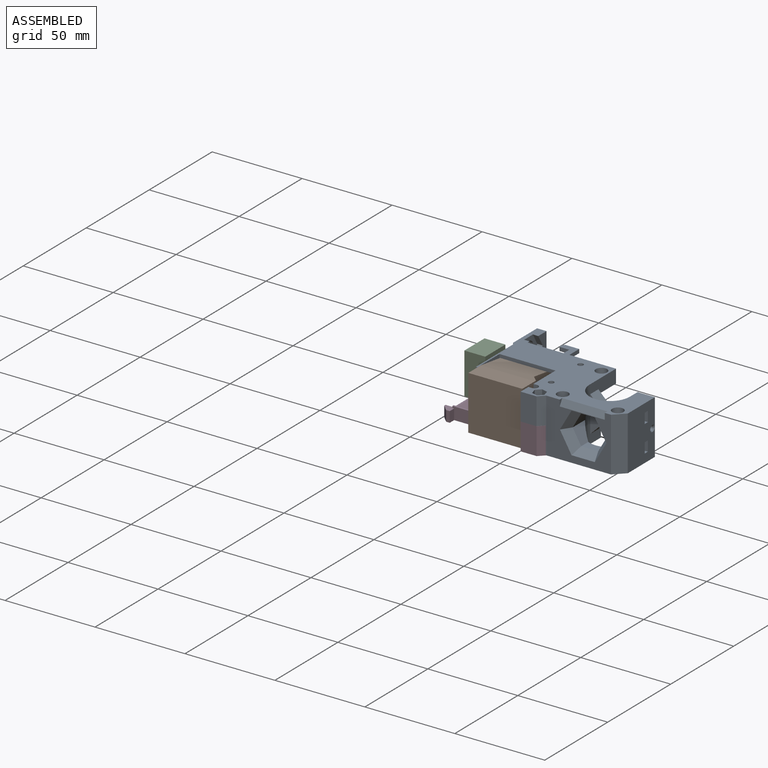
[diagram: assembled view]
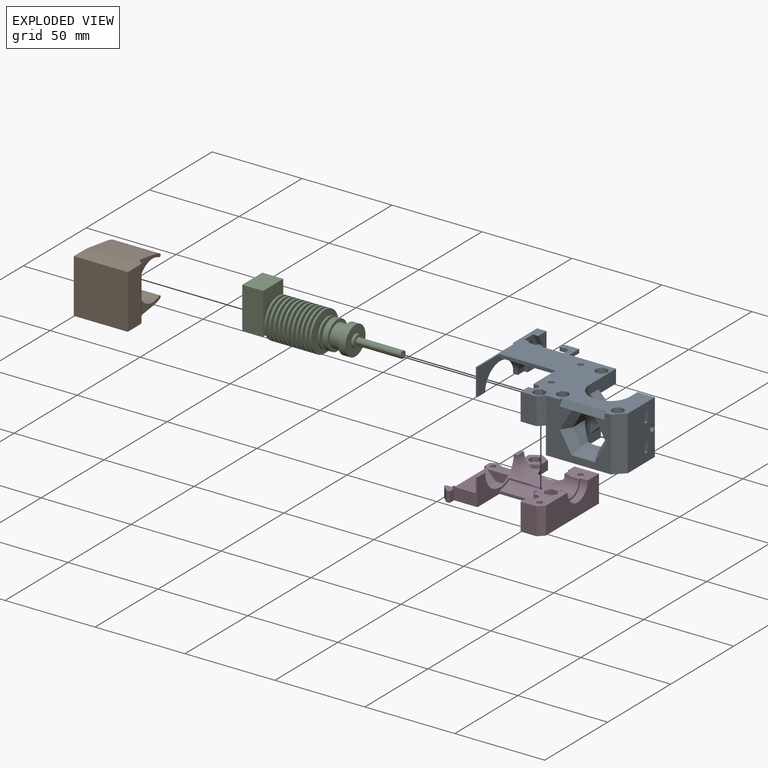
[diagram: exploded view]
GUIDED TOUR — MATED ASSEMBLY (Onshape document 5808ceccea01e9112e0c99a3, AutoMate assembly 5808ceccea01e9112e0c99a3_ede3eb0be8d5a74fef539a08_3d8ae932c43f72d399a84ea4_default)

This assembly has 4 components, labeled P0..P3 below (a component is one placed occurrence of a part; the same part can appear more than once), held together by 3 mates. A mate is a constraint between two components; its type names the relative motion it leaves free:
  FASTENED — locks the two components together rigidly (no relative motion).
Axis/direction vectors are unit vectors and 'through' points are millimeter coordinates, both in the assembly's world frame.

MATES
  1. FASTENED "Fastened 1": P1 <-> P2, direction (1.000, 0.000, 0.000) through (46.97, 20.38, -8.63) mm
  2. FASTENED "Fastened 2": P3 <-> P0, direction (0.000, 0.000, 1.000) through (59.56, -3.54, -8.63) mm
  3. FASTENED "Fastened 3": P2 <-> P0, direction (1.000, 0.000, 0.000) through (63.97, 20.38, -8.63) mm

ASSEMBLY ORDER
  1. P0 — the base component [order heuristic]
  2. P2 — core [order heuristic]
  3. P3 — core [order heuristic]
  4. P1 [order verified]
Order-tag legend:
  [order verified] — this step's position reverses a verified removal order: the component was checked to insert without passing through the ones already placed.
  [order heuristic] — the first 3 components form the assembly's core: parts whose collision-free extraction could not be verified, listed in mate-graph order.

Of the 4 components, 1 carries the full construction recipe — the FeatureScript program that regenerates the part's solid from scratch; the rest are supplied as boundary geometry only.
Each toured component is shown spotlighted twice — in the assembled view, then in the exploded view, where a leader line traces a displaced component back to its assembled socket (saturated green if recipe-attached, orange if geometry-only; every other component desaturated gray) — followed by its recipe or geometry summary and the mates that hold it.
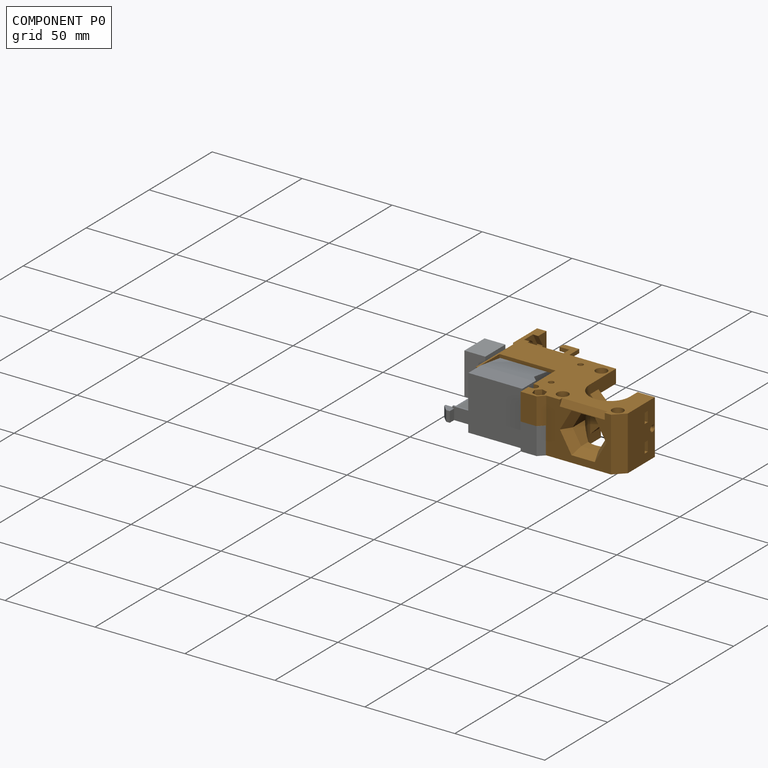
[diagram: component P0 — assembled]
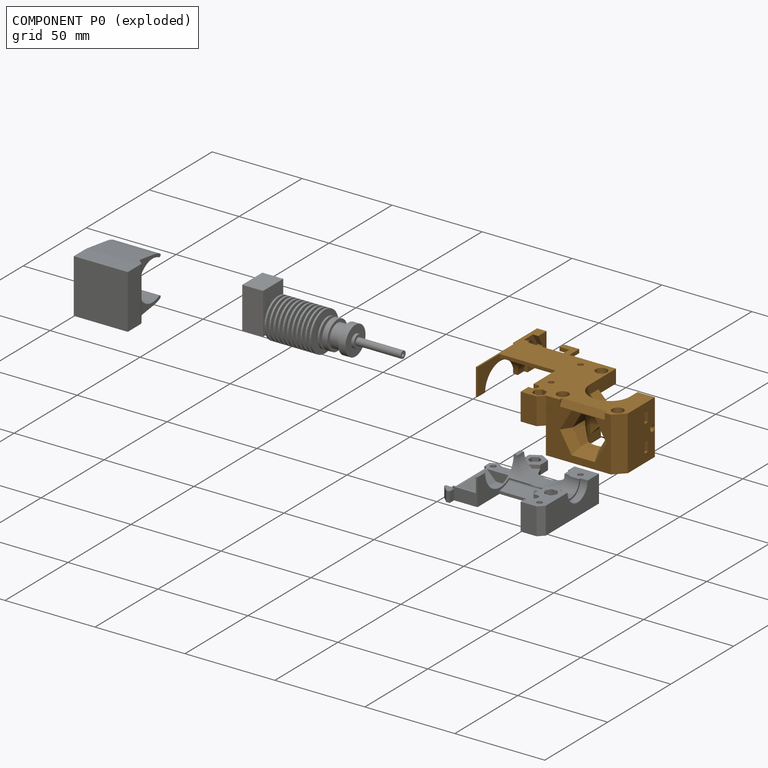
[diagram: component P0 — exploded]
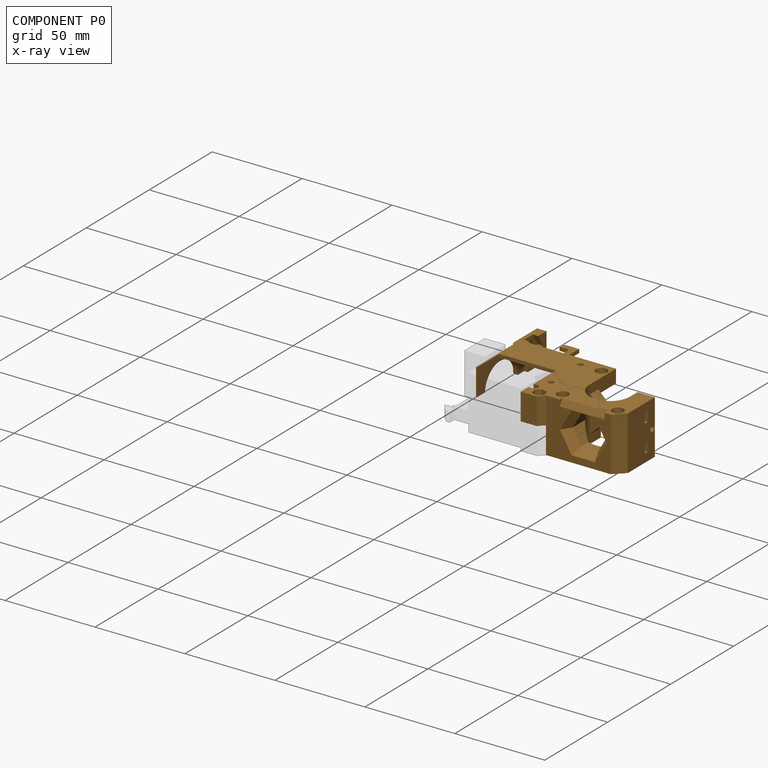
[diagram: component P0 — x-ray view]
COMPONENT P0 — geometry summary (no construction recipe available for this part):
  bounding box: 87.1 x 60.8 x 30.6 mm
  B-rep topology: 1 solid, 166 faces, 898 edges
  volume: 30368 mm^3 (19% of its bounding box)
Held by: FASTENED mate "Fastened 2" to P3; FASTENED mate "Fastened 3" to P2.
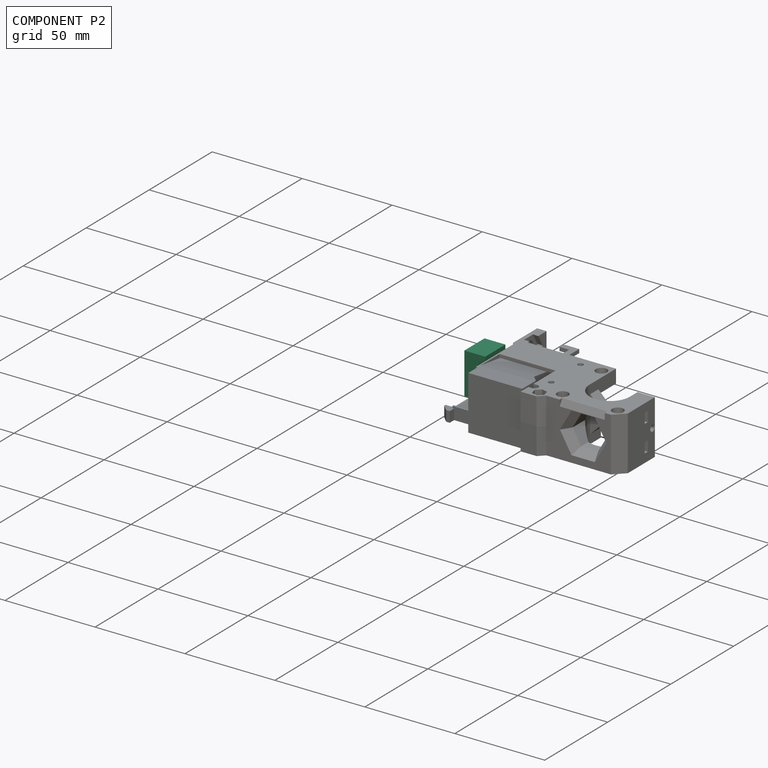
[diagram: component P2 — assembled]
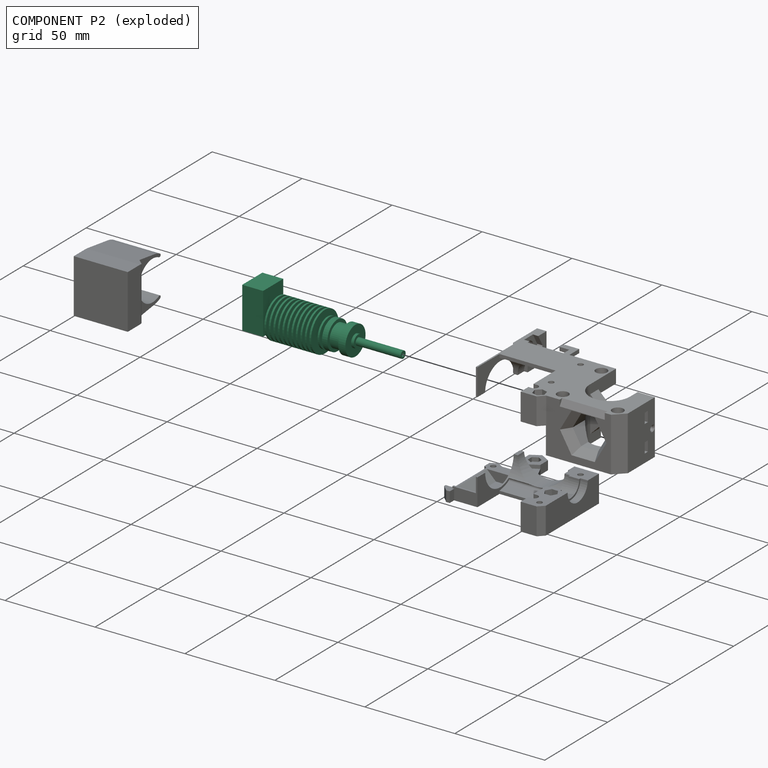
[diagram: component P2 — exploded]
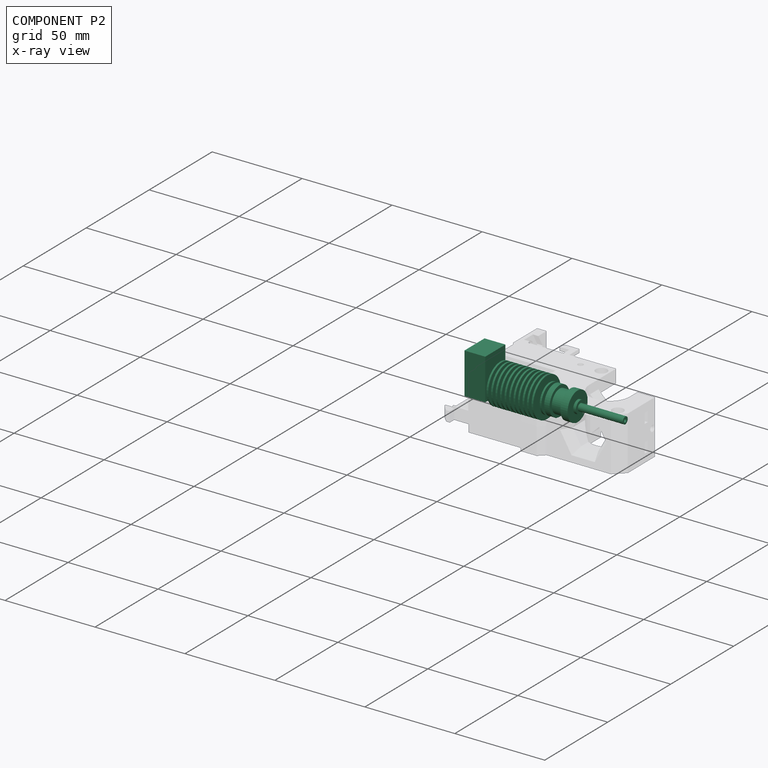
[diagram: component P2 — x-ray view]
COMPONENT P2 — recipe-attached (CADFS 00293074, mesh-verified: the recipe's output STEP matches this component's geometry to below the mesh-comparison resolution (tessellation chordal tolerance ~0.143 mm)).
Held by: FASTENED mate "Fastened 1" to P1; FASTENED mate "Fastened 3" to P0.
Construction recipe (FeatureScript — the CAD program that rebuilds this solid; sketch coordinates are in the units given by the * unit suffixes, e.g. mm):

FeatureScript 1511;
import(path : "onshape/std/geometry.fs", version : "1511.0");
import(path : "onshape/std/common.fs", version : "1511.0");
const mm = millimeter;
const VERTEX = EntityType.VERTEX;
const EDGE = EntityType.EDGE;
const FACE = EntityType.FACE;
const BODY = EntityType.BODY;
function v(x, y){return vector(x, y);}
function OD(order){return orderDisambiguation(order);}
function OSD(set){return originalSetDisambiguation(set);}
function TD(topology){return topologyDisambiguation(topology);}
function TDD(query){return trueDependencyDisambiguation(query);}
function sQuery(a, b, c) {return sketchEntityQuery(a, b, c);}

annotation { "Feature Type Name" : "Feature", "Feature Type Description" : "" }
export const myFeature = defineFeature(function(context is Context, id is Id, definition is map)
    precondition{}
    {
        {
            var Q0;
            Q0=qCreatedBy(makeId("Right.planeOp"),FACE);
            var sketch = newSketch(context, id + "F0", { "sketchPlane" : qUnion([Q0])});
            skLineSegment(sketch, "E0", {"start": v(0, 0) * mm, "end": v(0.5, 0) * mm});
            skLineSegment(sketch, "E1", {"start": v(0, 2) * mm, "end": v(2, 2) * mm});
            skLineSegment(sketch, "E2", {"start": v(0, 2) * mm, "end": v(0, 0) * mm});
            skLineSegment(sketch, "E3", {"start": v(0.5, 0) * mm, "end": v(2, 2) * mm});
            skSolve(sketch);
        }
        {
            var Q0;
            Q0=qSketchRegion(id+"F0",true);
            var Q1;
            Q1=sQuery(id+"F0.wireOp",EDGE,"E2");
            revolve(context, id + "F1", {"entities" : qUnion([Q0]), "axis" : qUnion([Q1]), "revolveType" : RevolveType.FULL});
        }
        {
            var Q0;
            Q0=makeQuery(id+"F1.opRevolve","SWEPT_FACE",FACE,{"disambiguationData":[OSD([sQuery(id+"F0.wireOp",EDGE,"E1")])]});
            var sketch = newSketch(context, id + "F2", { "sketchPlane" : qUnion([Q0])});
            skLineSegment(sketch, "E4", {"start": v(-2.02, 3.5) * mm, "end": v(2.02, 3.5) * mm});
            skLineSegment(sketch, "E5", {"start": v(-2.02, -3.5) * mm, "end": v(2.02, -3.5) * mm});
            skLineSegment(sketch, "E6", {"start": v(-2.02, 3.5) * mm, "end": v(-4.04, 0) * mm});
            skLineSegment(sketch, "E7", {"start": v(-4.04, 0) * mm, "end": v(-2.02, -3.5) * mm});
            skLineSegment(sketch, "E8", {"start": v(2.02, -3.5) * mm, "end": v(4.04, 0) * mm});
            skLineSegment(sketch, "E9", {"start": v(4.04, 0) * mm, "end": v(2.02, 3.5) * mm});
            skLineSegment(sketch, "E10", {"start": v(4.04, 4.39) * mm, "end": v(4.04, -4.08) * mm, "construction": true});
            skLineSegment(sketch, "E11", {"start": v(-4.04, 3.84) * mm, "end": v(-4.04, -4.08) * mm, "construction": true});
            skSolve(sketch);
        }
        {
            var Q0;
            Q0=qSketchRegion(id+"F2",true);
            extrude(context, id + "F3", {"entities" : qUnion([Q0]), "operationType" : NewBodyOperationType.ADD, "depth" : 3 * mm});
        }
        {
            var Q0;
            Q0=makeQuery(id+"F3.opExtrude","CAP_FACE",FACE,{"disambiguationData":[OSD([sQuery(id+"F2.wireOp",EDGE,"E4"),sQuery(id+"F2.wireOp",EDGE,"E5"),sQuery(id+"F2.wireOp",EDGE,"E6"),sQuery(id+"F2.wireOp",EDGE,"E7"),sQuery(id+"F2.wireOp",EDGE,"E8"),sQuery(id+"F2.wireOp",EDGE,"E9")])],"isStart":false});
            var sketch = newSketch(context, id + "F4", { "sketchPlane" : qUnion([Q0])});
            skLineSegment(sketch, "E12", {"start": v(-4.04, 7.54) * mm, "end": v(-4.04, -6.8) * mm, "construction": true});
            skLineSegment(sketch, "E13", {"start": v(-7.24, 8) * mm, "end": v(-7.24, -8) * mm});
            skLineSegment(sketch, "E14", {"start": v(-7.24, 8) * mm, "end": v(15.76, 8) * mm});
            skLineSegment(sketch, "E15", {"start": v(15.76, 8) * mm, "end": v(15.76, -8) * mm});
            skLineSegment(sketch, "E16", {"start": v(15.76, -8) * mm, "end": v(-7.24, -8) * mm});
            skSolve(sketch);
        }
        {
            var Q0;
            Q0=qSketchRegion(id+"F4",true);
            extrude(context, id + "F5", {"entities" : qUnion([Q0]), "operationType" : NewBodyOperationType.ADD, "depth" : 11.6 * mm});
        }
        {
            var Q0;
            Q0=makeQuery(id+"F5.opExtrude","CAP_FACE",FACE,{"disambiguationData":[OSD([sQuery(id+"F4.wireOp",EDGE,"E13"),sQuery(id+"F4.wireOp",EDGE,"E14"),sQuery(id+"F4.wireOp",EDGE,"E15"),sQuery(id+"F4.wireOp",EDGE,"E16")])],"isStart":false});
            var sketch = newSketch(context, id + "F6", { "sketchPlane" : qUnion([Q0])});
            skCircle(sketch, "E17.0", {"center": v(0, 0) * mm, "radius": 2 * mm, "construction": true});
            skCircle(sketch, "E18", {"center": v(0, 0) * mm, "radius": 1.38 * mm});
            skSolve(sketch);
        }
        {
            var Q0;
            Q0=qSketchRegion(id+"F6",true);
            extrude(context, id + "F7", {"entities" : qUnion([Q0]), "operationType" : NewBodyOperationType.ADD, "depth" : 2.75 * mm});
        }
        {
            var Q0;
            Q0=qCreatedBy(makeId("Front.planeOp"),FACE);
            var sketch = newSketch(context, id + "F8", { "sketchPlane" : qUnion([Q0])});
            skLineSegment(sketch, "E19", {"start": v(0, 18.7) * mm, "end": v(0, 62.35) * mm});
            skLineSegment(sketch, "E20.0", {"start": v(-1.38, 19.35) * mm, "end": v(0, 19.35) * mm, "construction": true});
            skLineSegment(sketch, "E21", {"start": v(1.38, 19.35) * mm, "end": v(11, 19.35) * mm});
            skLineSegment(sketch, "E22", {"start": v(11, 19.35) * mm, "end": v(11, 20.35) * mm});
            skLineSegment(sketch, "E23", {"start": v(11, 20.35) * mm, "end": v(6, 20.35) * mm});
            skLineSegment(sketch, "E24", {"start": v(1.38, 19.35) * mm, "end": v(1.38, 20.35) * mm, "construction": true});
            skLineSegment(sketch, "E25", {"start": v(1.37, 20.35) * mm, "end": v(1.37, 21.85) * mm, "construction": true});
            skLineSegment(sketch, "E26", {"start": v(1.38, 19.35) * mm, "end": v(0, 19.35) * mm});
            skLineSegment(sketch, "E27.0.1.0", {"start": v(5.9, 21.85) * mm, "end": v(11, 21.85) * mm});
            skLineSegment(sketch, "E27.0.1.1", {"start": v(11, 21.85) * mm, "end": v(11, 22.85) * mm});
            skLineSegment(sketch, "E27.0.1.2", {"start": v(11, 22.85) * mm, "end": v(5.83, 22.85) * mm});
            skLineSegment(sketch, "E27.0.2.0", {"start": v(5.72, 24.35) * mm, "end": v(11, 24.35) * mm});
            skLineSegment(sketch, "E27.0.2.1", {"start": v(11, 24.35) * mm, "end": v(11, 25.35) * mm});
            skLineSegment(sketch, "E27.0.2.2", {"start": v(11, 25.35) * mm, "end": v(5.65, 25.35) * mm});
            skLineSegment(sketch, "E27.0.3.0", {"start": v(5.55, 26.85) * mm, "end": v(11, 26.85) * mm});
            skLineSegment(sketch, "E27.0.3.1", {"start": v(11, 26.85) * mm, "end": v(11, 27.85) * mm});
            skLineSegment(sketch, "E27.0.3.2", {"start": v(11, 27.85) * mm, "end": v(5.48, 27.85) * mm});
            skLineSegment(sketch, "E27.0.4.0", {"start": v(5.38, 29.35) * mm, "end": v(11, 29.35) * mm});
            skLineSegment(sketch, "E27.0.4.1", {"start": v(11, 29.35) * mm, "end": v(11, 30.35) * mm});
            skLineSegment(sketch, "E27.0.4.2", {"start": v(11, 30.35) * mm, "end": v(5.3, 30.35) * mm});
            skLineSegment(sketch, "E27.0.5.0", {"start": v(5.2, 31.85) * mm, "end": v(11, 31.85) * mm});
            skLineSegment(sketch, "E27.0.5.1", {"start": v(11, 31.85) * mm, "end": v(11, 32.85) * mm});
            skLineSegment(sketch, "E27.0.5.2", {"start": v(11, 32.85) * mm, "end": v(5.14, 32.85) * mm});
            skLineSegment(sketch, "E27.0.6.0", {"start": v(5.03, 34.35) * mm, "end": v(11, 34.35) * mm});
            skLineSegment(sketch, "E27.0.6.1", {"start": v(11, 34.35) * mm, "end": v(11, 35.35) * mm});
            skLineSegment(sketch, "E27.0.6.2", {"start": v(11, 35.35) * mm, "end": v(4.96, 35.35) * mm});
            skLineSegment(sketch, "E27.0.7.0", {"start": v(4.86, 36.85) * mm, "end": v(11, 36.85) * mm});
            skLineSegment(sketch, "E27.0.7.1", {"start": v(11, 36.85) * mm, "end": v(11, 37.85) * mm});
            skLineSegment(sketch, "E27.0.7.2", {"start": v(11, 37.85) * mm, "end": v(4.79, 37.85) * mm});
            skLineSegment(sketch, "E27.0.8.0", {"start": v(4.69, 39.35) * mm, "end": v(11, 39.35) * mm});
            skLineSegment(sketch, "E27.0.8.1", {"start": v(11, 39.35) * mm, "end": v(11, 40.35) * mm});
            skLineSegment(sketch, "E27.0.8.2", {"start": v(11, 40.35) * mm, "end": v(4.62, 40.35) * mm});
            skLineSegment(sketch, "E27.0.9.0", {"start": v(4.51, 41.85) * mm, "end": v(11, 41.85) * mm});
            skLineSegment(sketch, "E27.0.9.1", {"start": v(11, 41.85) * mm, "end": v(11, 42.85) * mm});
            skLineSegment(sketch, "E27.0.9.2", {"start": v(11, 42.85) * mm, "end": v(4.44, 42.85) * mm});
            skLineSegment(sketch, "E27.direction1", {"start": v(1.37, 19.35) * mm, "end": v(26.38, 19.35) * mm, "construction": true});
            skLineSegment(sketch, "E28", {"start": v(4.34, 44.35) * mm, "end": v(11, 44.35) * mm});
            skLineSegment(sketch, "E29", {"start": v(11, 44.35) * mm, "end": v(11, 45.35) * mm});
            skLineSegment(sketch, "E30", {"start": v(11, 45.35) * mm, "end": v(4.27, 45.35) * mm});
            skLineSegment(sketch, "E31", {"start": v(6, 20.35) * mm, "end": v(5.9, 21.85) * mm});
            skPoint(sketch, "E32.orphan", {"position": v(1.38, 21.85) * mm});
            skPoint(sketch, "E33.orphan", {"position": v(1.38, 24.35) * mm});
            skLineSegment(sketch, "E34.trimOffspring", {"start": v(5.83, 22.85) * mm, "end": v(5.72, 24.35) * mm});
            skLineSegment(sketch, "E35.trimOffspring", {"start": v(5.65, 25.35) * mm, "end": v(5.55, 26.85) * mm});
            skPoint(sketch, "E36.orphan", {"position": v(1.38, 26.85) * mm});
            skLineSegment(sketch, "E37.trimOffspring", {"start": v(5.48, 27.85) * mm, "end": v(5.38, 29.35) * mm});
            skPoint(sketch, "E38.orphan", {"position": v(1.38, 29.35) * mm});
            skPoint(sketch, "E39.orphan", {"position": v(1.38, 31.85) * mm});
            skPoint(sketch, "E40.orphan", {"position": v(1.38, 34.35) * mm});
            skPoint(sketch, "E41.orphan", {"position": v(1.38, 36.85) * mm});
            skPoint(sketch, "E42.orphan", {"position": v(1.38, 39.35) * mm});
            skPoint(sketch, "E43.orphan", {"position": v(1.38, 41.85) * mm});
            skLineSegment(sketch, "E44.trimOffspring", {"start": v(4.44, 42.85) * mm, "end": v(4.34, 44.35) * mm});
            skLineSegment(sketch, "E45.trimOffspring", {"start": v(4.62, 40.35) * mm, "end": v(4.51, 41.85) * mm});
            skLineSegment(sketch, "E46.trimOffspring", {"start": v(4.79, 37.85) * mm, "end": v(4.69, 39.35) * mm});
            skLineSegment(sketch, "E47.trimOffspring", {"start": v(4.96, 35.35) * mm, "end": v(4.86, 36.85) * mm});
            skLineSegment(sketch, "E48.trimOffspring", {"start": v(5.14, 32.85) * mm, "end": v(5.03, 34.35) * mm});
            skLineSegment(sketch, "E49.trimOffspring", {"start": v(5.3, 30.35) * mm, "end": v(5.2, 31.85) * mm});
            skLineSegment(sketch, "E50", {"start": v(4.27, 45.35) * mm, "end": v(4.17, 46.85) * mm});
            skLineSegment(sketch, "E51", {"start": v(0, 45.35) * mm, "end": v(0, 46.85) * mm});
            skLineSegment(sketch, "E52", {"start": v(4.17, 46.85) * mm, "end": v(8, 46.85) * mm});
            skLineSegment(sketch, "E53", {"start": v(8, 46.85) * mm, "end": v(8, 47.85) * mm});
            skLineSegment(sketch, "E54", {"start": v(8, 47.85) * mm, "end": v(4.1, 47.85) * mm});
            skLineSegment(sketch, "E55", {"start": v(4, 49.35) * mm, "end": v(8, 49.35) * mm});
            skLineSegment(sketch, "E56", {"start": v(8, 49.35) * mm, "end": v(8, 52.35) * mm});
            skLineSegment(sketch, "E57", {"start": v(8, 52.35) * mm, "end": v(6.25, 52.35) * mm});
            skLineSegment(sketch, "E58.trimOffspring", {"start": v(4.1, 47.85) * mm, "end": v(4, 49.35) * mm});
            skLineSegment(sketch, "E59", {"start": v(6.25, 52.35) * mm, "end": v(6.25, 58.35) * mm});
            skLineSegment(sketch, "E60", {"start": v(6.25, 58.35) * mm, "end": v(8, 58.35) * mm});
            skLineSegment(sketch, "E61", {"start": v(8, 58.35) * mm, "end": v(8, 62.35) * mm});
            skLineSegment(sketch, "E62", {"start": v(8, 62.35) * mm, "end": v(0, 62.35) * mm});
            skSolve(sketch);
        }
        {
            var Q0;
            Q0=qSketchRegion(id+"F8",true);
            var Q1;
            Q1=sQuery(id+"F8.wireOp",EDGE,"E19");
            revolve(context, id + "F9", {"operationType" : NewBodyOperationType.ADD, "entities" : qUnion([Q0]), "axis" : qUnion([Q1]), "revolveType" : RevolveType.FULL});
        }
        {
            var Q0;
            Q0=makeQuery(id+"F9.opRevolve","SWEPT_FACE",FACE,{"disambiguationData":[OSD([sQuery(id+"F8.wireOp",EDGE,"E62")])]});
            var sketch = newSketch(context, id + "F10", { "sketchPlane" : qUnion([Q0])});
            skCircle(sketch, "E63.0", {"center": v(0, 0) * mm, "radius": 8 * mm, "construction": true});
            skCircle(sketch, "E64", {"center": v(0, 0) * mm, "radius": 3.5 * mm});
            skSolve(sketch);
        }
        {
            var Q0;
            Q0=qSketchRegion(id+"F10",true);
            extrude(context, id + "F11", {"entities" : qUnion([Q0]), "operationType" : NewBodyOperationType.ADD, "depth" : 1.5 * mm});
        }
        {
            var Q0;
            Q0=makeQuery(id+"F11.opExtrude","CAP_FACE",FACE,{"disambiguationData":[OSD([sQuery(id+"F10.wireOp",EDGE,"E64")])],"isStart":false});
            var sketch = newSketch(context, id + "F12", { "sketchPlane" : qUnion([Q0])});
            skCircle(sketch, "E65.0", {"center": v(0, 0) * mm, "radius": 3.5 * mm, "construction": true});
            skCircle(sketch, "E66", {"center": v(0, 0) * mm, "radius": 2 * mm});
            skCircle(sketch, "E67", {"center": v(0, 0) * mm, "radius": 1 * mm});
            skSolve(sketch);
        }
        {
            var Q0;
            Q0=qSketchRegion(id+"F12",true);
            extrude(context, id + "F13", {"entities" : qUnion([Q0]), "operationType" : NewBodyOperationType.ADD, "depth" : 25 * mm});
        }
    });
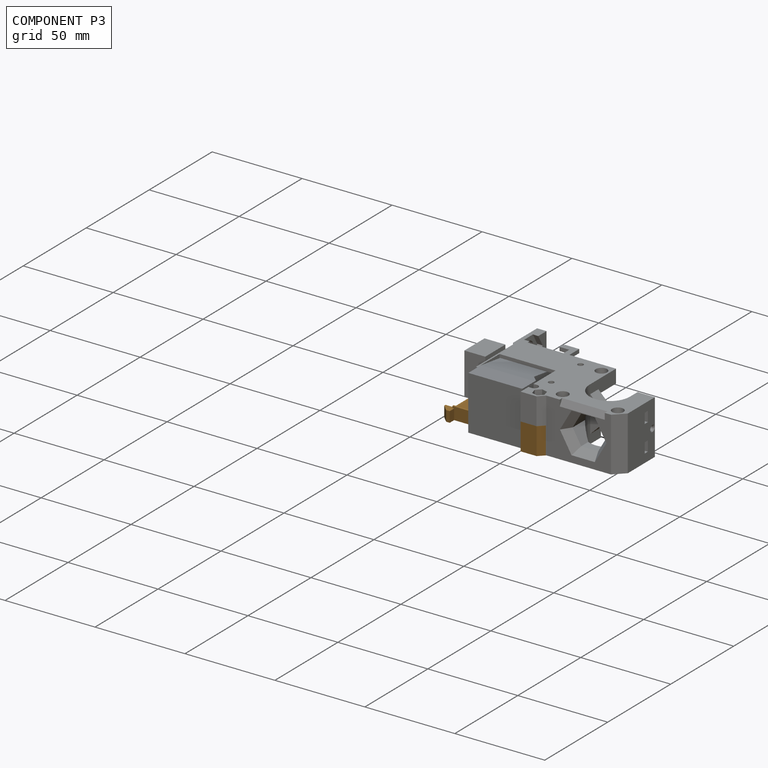
[diagram: component P3 — assembled]
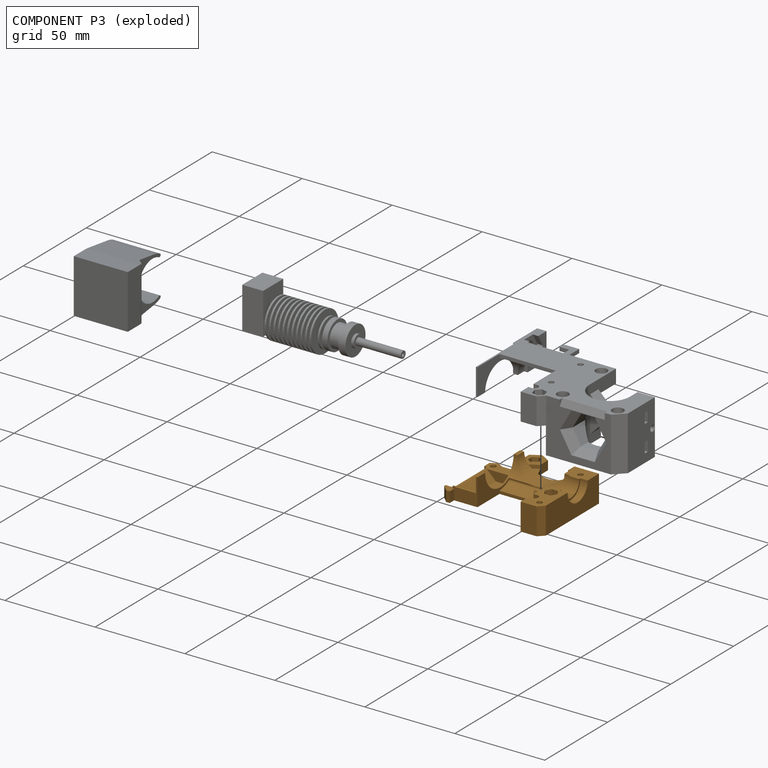
[diagram: component P3 — exploded]
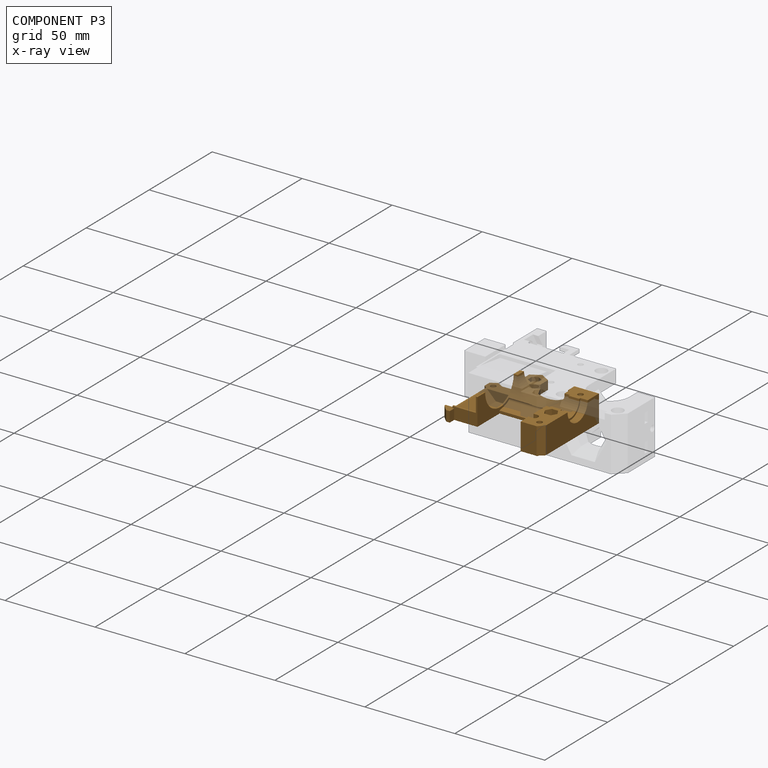
[diagram: component P3 — x-ray view]
COMPONENT P3 — geometry summary (no construction recipe available for this part):
  bounding box: 64.3 x 61.5 x 15.0 mm
  B-rep topology: 1 solid, 84 faces, 464 edges
  volume: 10939 mm^3 (18% of its bounding box)
Held by: FASTENED mate "Fastened 2" to P0.
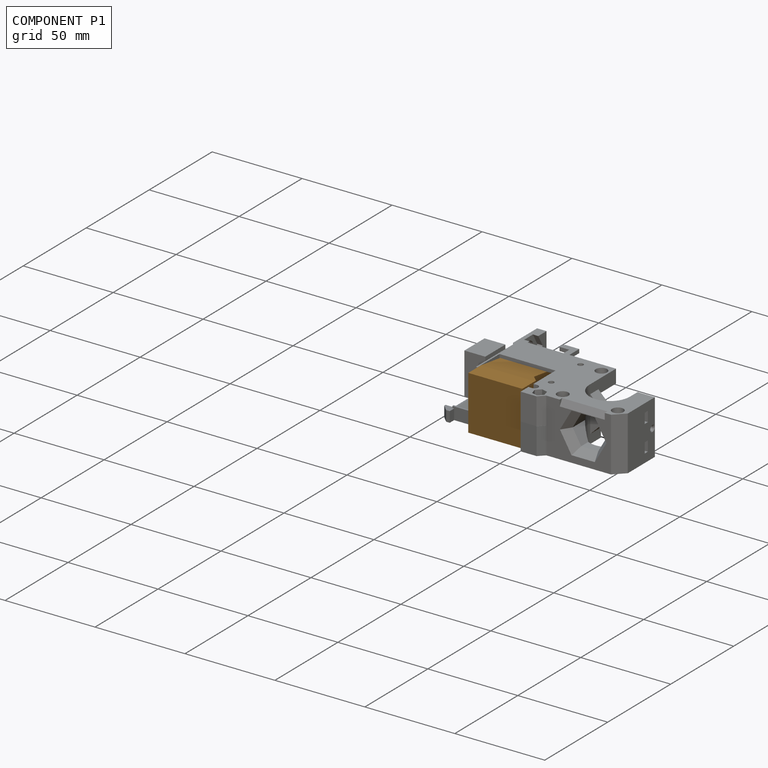
[diagram: component P1 — assembled]
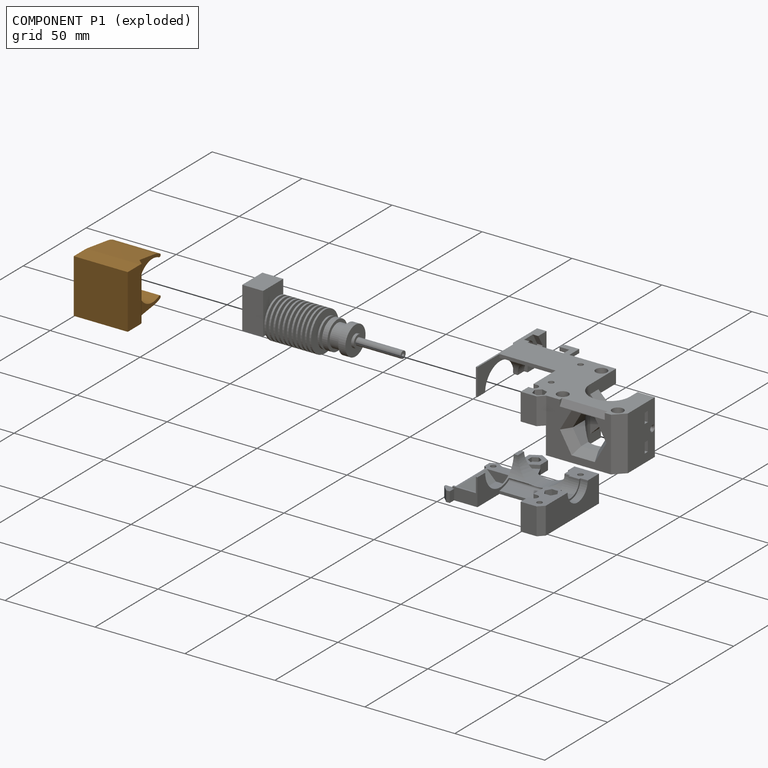
[diagram: component P1 — exploded]
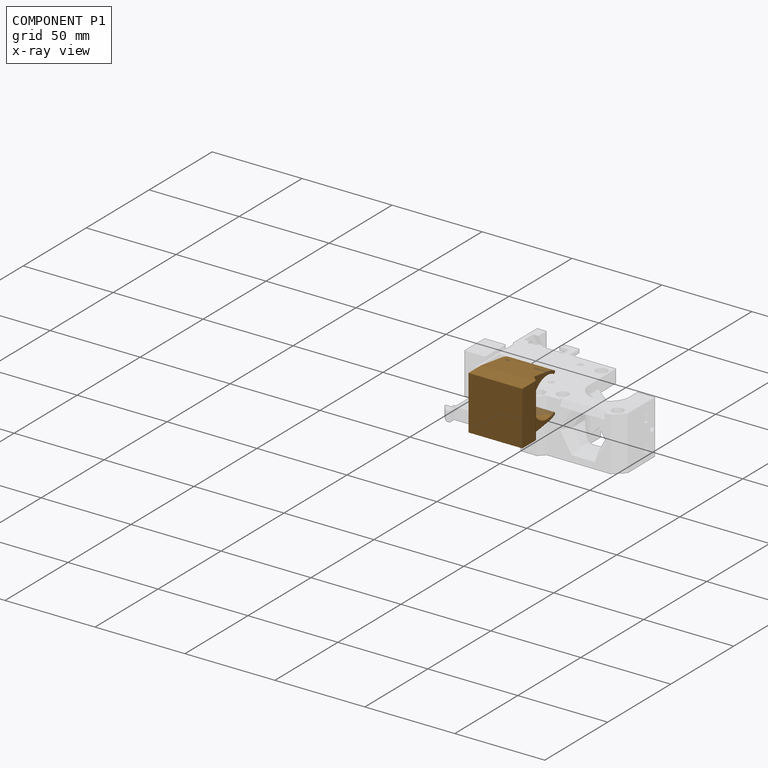
[diagram: component P1 — x-ray view]
COMPONENT P1 — geometry summary (no construction recipe available for this part):
  bounding box: 31.8 x 30.0 x 30.0 mm
  B-rep topology: 1 solid, 18 faces, 96 edges
  volume: 16163 mm^3 (56% of its bounding box)
  symmetry: mirror-symmetric across its x mid-plane
Held by: FASTENED mate "Fastened 1" to P2.
PROVENANCE & LICENSES
Assembly (occurrences, transforms, mates, per-part STEP geometry): AutoMate dataset, Zenodo record 7776208, CC0.
Construction recipes: CADFS (HuggingFace VladPyatov/CADFS, CC-BY-4.0, layered over the ABC dataset), FeatureScript reconstruction programs keyed by ABC model id.
Join: ABC meta listings map ABC model id -> Onshape documentId; within a shared document, parts are matched by geometric signature (bounding-box dims + volume at 0.1% relative tolerance, exact B-rep face/solid counts).
Verification: 1 of this assembly's 4 components carries a recipe attachment, and every attachment is mesh-verified: the CADFS STEP and the AutoMate member STEP were compared as meshes in their shared local frame (symmetric sampled-point-to-mesh distance); worst across the 1 attachment: below the mesh-comparison resolution (tessellation chordal tolerance ~0.143 mm) on a 95 mm part.
Renders: orthographic iso camera (az 35 / el 25); the floor grid conveys scale (grid pitch printed in each image; no ruler). In the exploded view each component is displaced by its stored offset vector: the offsets alone carry the explosion direction (mate normal/axis signs are not orientation cues and do not encode it), and separation distances are assigned per mate-chain, not proportionally to assembly-order depth.
